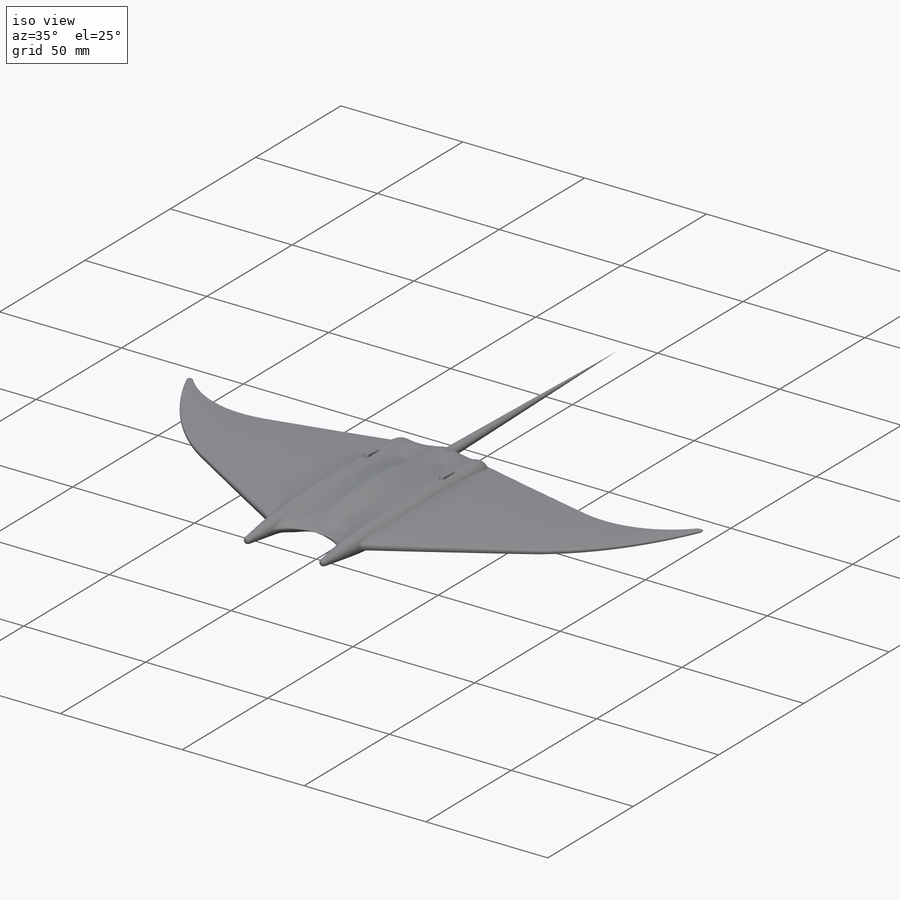
[diagram: iso view]
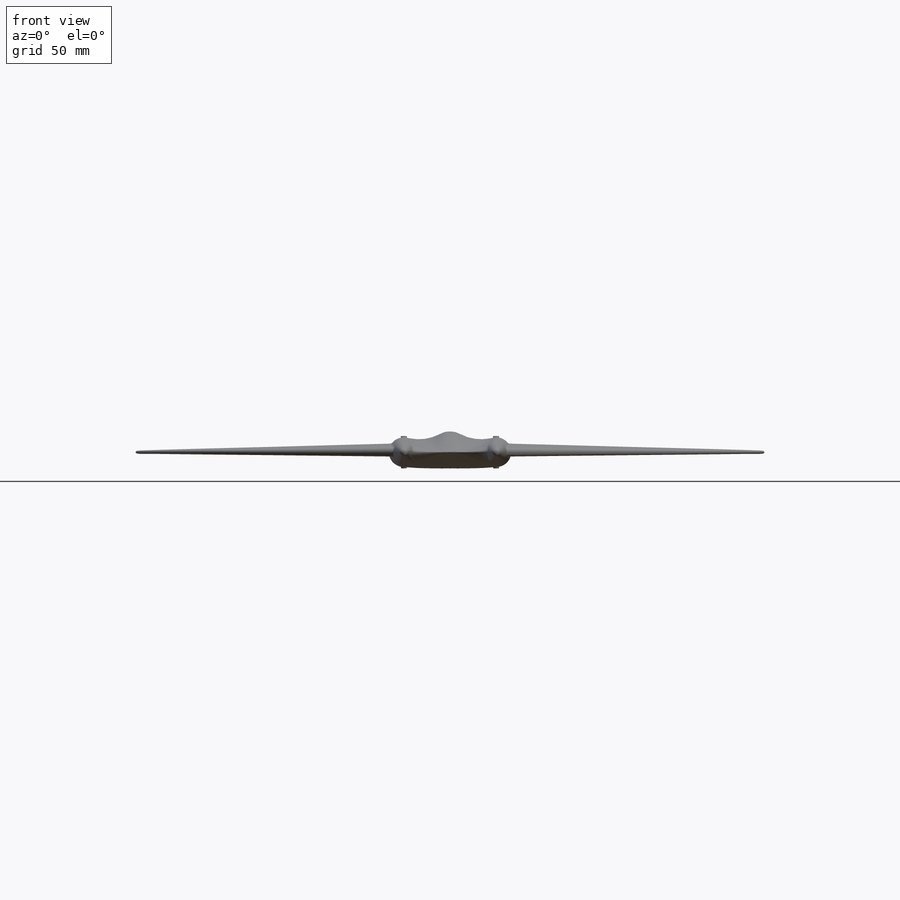
[diagram: front view]
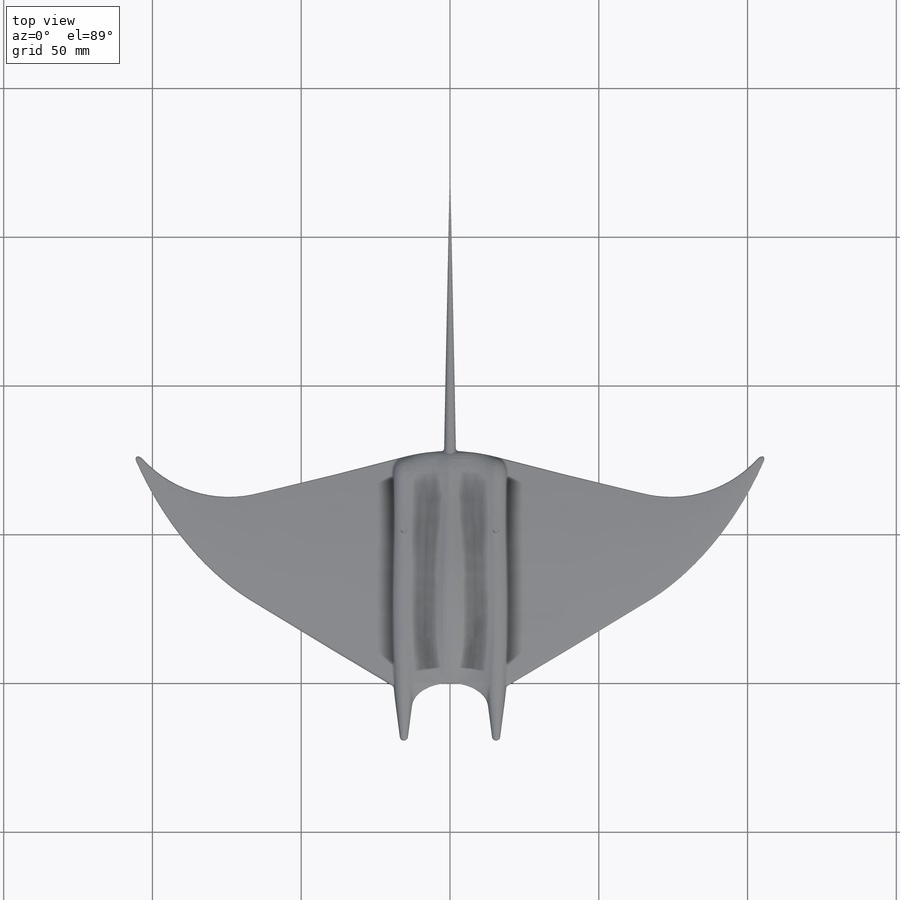
[diagram: top view]
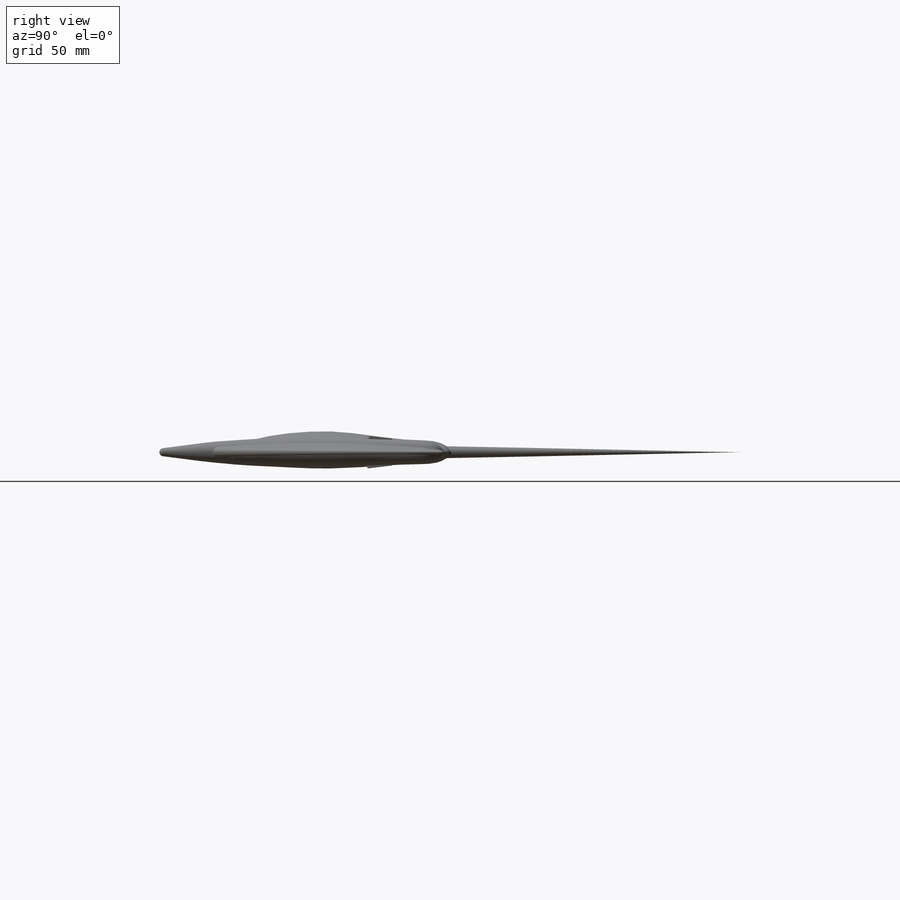
[diagram: right view]
SOLIDWORKS PART (.sldprt)
format: sldprt  version: not decoded by parser v0  size: 1,836,032 bytes
history: native  units: mm
features: sketch x57, plane x15, mirror x2, fillet x2, material x1, boolean_combine x1, sweep x1, surface_op x1, revolve x1 (+11 scaffold rows collapsed; 1 parser-record rows omitted)
feature tree (93):
  scaffold x11  (default folders/planes/origin — collapsed)
  material  "ABS impr3d"
  plane  "Plan de face"
  plane  "Plan de dessus"
  plane  "Plan de droite"
  sketch  "Esquisse1"  dims[c1.D4=~1.377015mm c1.D7=3.0mm c1.D12=235.0mm c1.D13=~39.152134mm c1.D14=50.0mm c2.D12=2000.0mm c2.D16=1.0mm c2.D1=15.0mm c2.D2=2.0mm c3.D1=6.0mm c3.D2=25.0mm c3.D3=~8.626074mm c4.D3=15.0deg c4.D5=31.0mm c4.D6=18.0mm c4.D8=~47.906548mm c5.D8=30.0deg c5.D9=31.0mm c5.D10=2.0mm c5.D11=78.0mm c5.D15=210.0mm]
  sketch  "Esquisse2"  dims[D1=1.0mm]
  parser-record x1  (decoder bookkeeping rows leaked as tree rows — omitted from the tree; the rows remain in map.json)
  plane  "Plan1"  Offset=36mm
  sketch  "Esquisse3"  dims[D2=5.0mm D3=15.0mm D1=7.0mm D4=0.5mm]
  plane  "Plan2"  Offset=12mm
  plane  "Plan3"
  plane  "Plan4"
  plane  "Plan7"  Offset=0.05mm
  plane  "Plan8"  Offset=0.05mm
  sketch  "Esquisse6"
  sketch  "Esquisse7"  dims[c1.D1=~8.64905mm c2.D1=7.5deg c3.D1=360.0deg]
  sketch  "Esquisse8"  dims[c1.D1=~13.739017mm c2.D1=30.0deg c2.D2=0.1mm]
  sketch  "Esquisse40"
  sketch  "Esquisse9"
  sketch  "Esquisse10"  dims[D1=17.0mm D2=2.0mm]
  sketch  "Esquisse11"
  sketch  "Esquisse41"
  sketch  "Esquisse48"
  sketch  "Esquisse49"
  plane  "Plan9"  Offset=12.8mm
  sketch  "Esquisse53"
  sketch  "Esquisse54"
  sketch  "Esquisse55"
  sketch  "Esquisse56"  dims[D1=30.0mm]
  sketch  "Esquisse60"
  sketch  "Esquisse57"
  sketch  "Esquisse61"
  sketch  "Esquisse62"
  plane  "Plan10"
  sketch  "Esquisse63"
  plane  "Plan11"  Offset=5mm
  sketch  "Esquisse64"
  plane  "Plan12"  Offset=5mm
  sketch  "Esquisse66"
  sketch  "Esquisse12"
  sketch  "Esquisse16"
  sketch  "Esquisse17"  dims[c1.D1=~3.115534mm c2.D1=45.0deg]
  sketch  "Esquisse15"  dims[c1.D1=~2.062517mm c2.D1=10.0deg]
  sketch  "Esquisse19"
  sketch  "Esquisse20"  dims[D1=~7.186885mm]
  plane  "Plan5"  Offset=33mm
  sketch  "Esquisse21"  dims[c1.D1=8.0mm c1.D2=8.0mm c1.D3=~3.703256mm c2.D3=20.0deg]
  sketch  "Esquisse23"
  sketch  "Esquisse24"
  sketch  "Esquisse25"
  sketch  "Esquisse26"
  sketch  "Esquisse67"
  sketch  "Esquisse68"
  sketch  "Esquisse27"
  sketch  "Esquisse28"
  sketch  "Esquisse29"
  sketch  "Esquisse30"
  sketch  "Esquisse31"
  sketch  "Esquisse69"
  sketch  "Esquisse70"
  sketch  "Esquisse71"
  plane  "Plan6"
  sketch  "Esquisse32"
  sketch  "Esquisse72"
  sketch  "Esquisse33"
  sketch  "Esquisse34"  dims[D1=1.5mm D2=0.5mm D3=500.0mm D4=380.0mm]
  sketch  "Esquisse35"  dims[D1=0.6mm D2=0.5mm D3=500.0mm D4=380.0mm]
  sketch  "Esquisse36"
  sketch  "Esquisse37"
  sketch  "Esquisse38"
  boolean_combine  "Combiner1"
  sketch  "Esquisse74"  dims[D2=1.0mm D3=0.5mm D1=7.0mm D4=50.0mm]
  sketch  "Esquisse75"  dims[D1=6.0mm D2=2.0mm]
  sweep  "Balayage2"
  sketch  "Esquisse76"
  surface_op  "Surface-Extrusion1"
  mirror  "Symétrie2"
  mirror  "Symétrie1"
  sketch  "Esquisse73"  dims[D1=4.0mm D2=2.0mm D3=100.0mm]
  revolve  "Révolution1"  Angle=360deg
  fillet  "Congé1"  Radius=1mm
  fillet  "Congé2"  Radius=1mm
decode coverage: 19 of 65 modeling features carry decoded parameters
note: ~ marks probable driven/reference dimensions
note: suppression state not decoded; provenance and decode notes live in map.json
